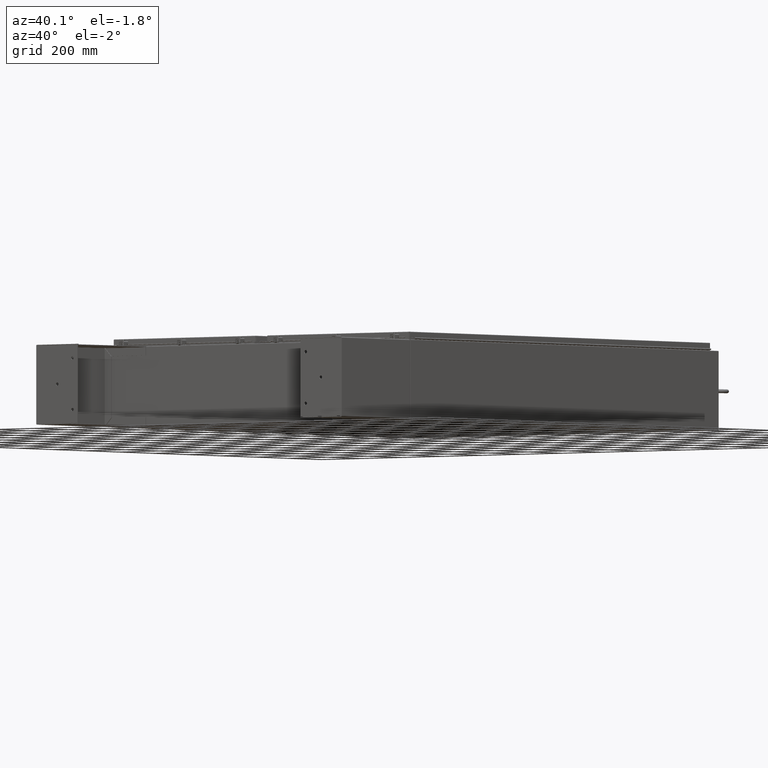
[diagram: clean part render]
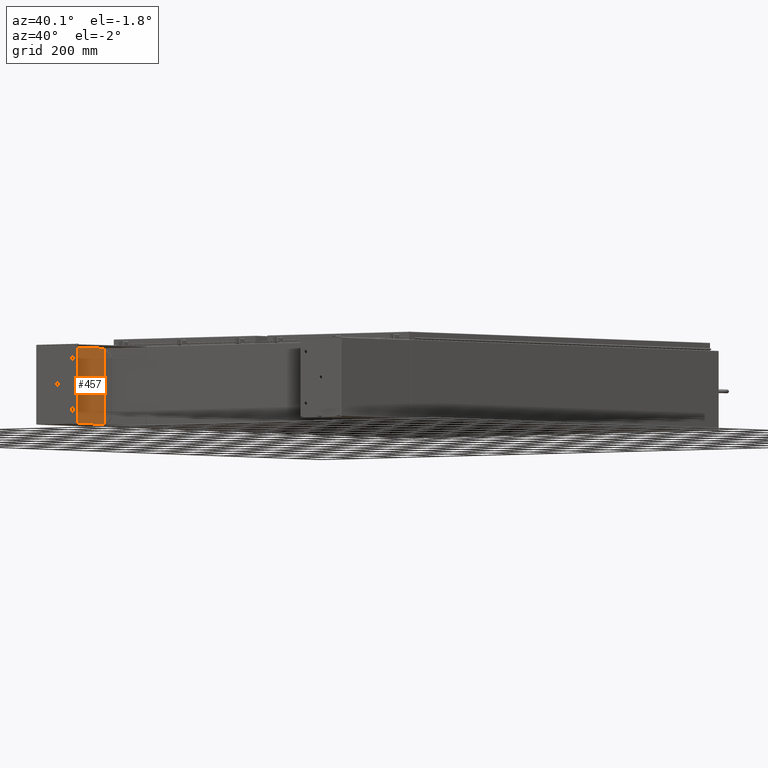
[diagram: same view with one face highlighted and labeled with its STEP entity id]
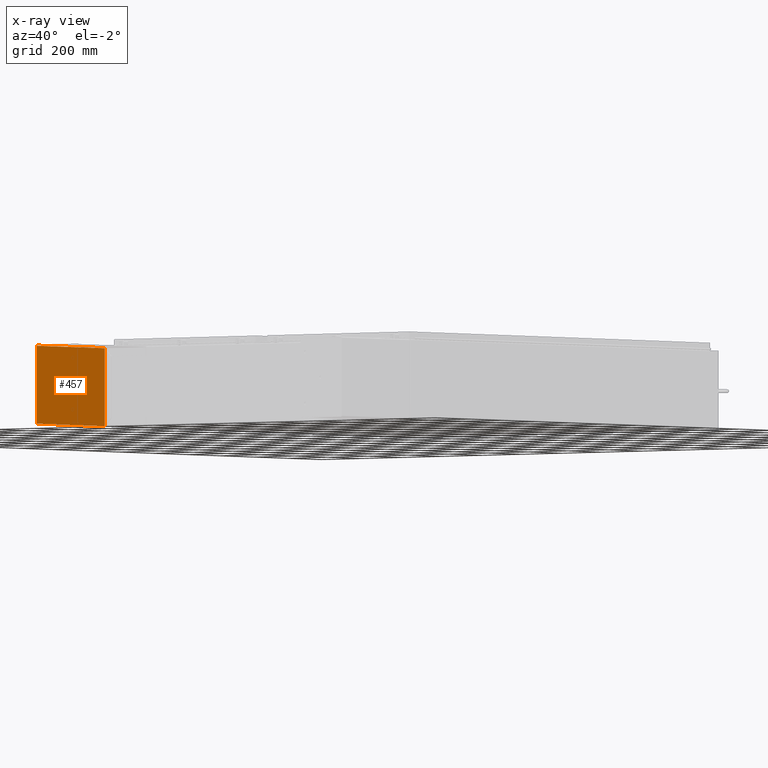
[diagram: x-ray of the same camera — body ghosted, the highlighted face saturated]
A machine part, auxiliary view. The second image highlights one B-rep face of the part: STEP entity #457.
The next image is the same camera in x-ray: the body ghosted, the highlighted face saturated — about 1% of this face is hidden behind the body in this view.
In plain terms, the highlighted planar face has unit normal (-1, 0, -0).
Its self-contained STEP definition (entity closure, byte-faithful):
#457 = ADVANCED_FACE ( 'NONE', ( #75121 ), #16752, .F. ) ;
#5501 = VERTEX_POINT ( 'NONE', #30797 ) ;
#5655 = EDGE_CURVE ( 'NONE', #5501, #14120, #72978, .T. ) ;
#5783 = VECTOR ( 'NONE', #11937, 39.37007874015748100 ) ;
#7191 = CARTESIAN_POINT ( 'NONE',  ( -5.856999999999998400, -7.999999999999932500, 0.0000000000000000000 ) ) ;
#7687 = LINE ( 'NONE', #7191, #5783 ) ;
#8050 = LINE ( 'NONE', #74559, #53851 ) ;
#9086 = ORIENTED_EDGE ( 'NONE', *, *, #16236, .F. ) ;
#11937 = DIRECTION ( 'NONE',  ( 0.0000000000000000000, 1.000000000000000000, -9.655357258041868400E-032 ) ) ;
#14120 = VERTEX_POINT ( 'NONE', #77015 ) ;
#16236 = EDGE_CURVE ( 'NONE', #5501, #28042, #7687, .T. ) ;
#16485 = DIRECTION ( 'NONE',  ( -1.000000000000000000, 0.0000000000000000000, 9.466330862652141700E-029 ) ) ;
#16583 = DIRECTION ( 'NONE',  ( -9.466330862652141700E-029, 9.655357258071575900E-032, -1.000000000000000000 ) ) ;
#16752 = PLANE ( 'NONE',  #64174 ) ;
#17512 = CARTESIAN_POINT ( 'NONE',  ( 5.999999999999997300, 8.000000000000032000, 0.0000000000000000000 ) ) ;
#22277 = CARTESIAN_POINT ( 'NONE',  ( -5.857000000000000200, 7.856999999999998400, 0.0000000000000000000 ) ) ;
#23964 = VECTOR ( 'NONE', #75799, 39.37007874015748100 ) ;
#24127 = ORIENTED_EDGE ( 'NONE', *, *, #5655, .T. ) ;
#27613 = EDGE_LOOP ( 'NONE', ( #45517, #9086, #24127, #47468 ) ) ;
#28042 = VERTEX_POINT ( 'NONE', #22277 ) ;
#30797 = CARTESIAN_POINT ( 'NONE',  ( -5.856999999999998400, -7.999999999999932500, 0.0000000000000000000 ) ) ;
#43935 = VERTEX_POINT ( 'NONE', #65397 ) ;
#44249 = EDGE_CURVE ( 'NONE', #28042, #43935, #8050, .T. ) ;
#45517 = ORIENTED_EDGE ( 'NONE', *, *, #44249, .F. ) ;
#47468 = ORIENTED_EDGE ( 'NONE', *, *, #55202, .F. ) ;
#53851 = VECTOR ( 'NONE', #68681, 39.37007874015748100 ) ;
#55202 = EDGE_CURVE ( 'NONE', #43935, #14120, #57541, .T. ) ;
#57541 = LINE ( 'NONE', #58281, #23964 ) ;
#58281 = CARTESIAN_POINT ( 'NONE',  ( 5.857000000000000200, 8.000000000000032000, 0.0000000000000000000 ) ) ;
#64174 = AXIS2_PLACEMENT_3D ( 'NONE', #17512, #16583, #16485 ) ;
#65397 = CARTESIAN_POINT ( 'NONE',  ( 5.857000000000000200, 7.857000000000034000, 0.0000000000000000000 ) ) ;
#68681 = DIRECTION ( 'NONE',  ( 1.000000000000000000, 0.0000000000000000000, -9.466330862652141700E-029 ) ) ;
#70285 = CARTESIAN_POINT ( 'NONE',  ( -5.999999999999997300, -7.999999999999871200, 0.0000000000000000000 ) ) ;
#70368 = DIRECTION ( 'NONE',  ( 1.000000000000000000, 0.0000000000000000000, -9.466330862652142800E-029 ) ) ;
#71141 = VECTOR ( 'NONE', #70368, 39.37007874015748100 ) ;
#72978 = LINE ( 'NONE', #70285, #71141 ) ;
#74559 = CARTESIAN_POINT ( 'NONE',  ( -5.857000000000000200, 7.856999999999998400, 0.0000000000000000000 ) ) ;
#75121 = FACE_OUTER_BOUND ( 'NONE', #27613, .T. ) ;
#75799 = DIRECTION ( 'NONE',  ( 0.0000000000000000000, -1.000000000000000000, 9.655357258041868400E-032 ) ) ;
#77015 = CARTESIAN_POINT ( 'NONE',  ( 5.856999999999998400, -7.999999999999923600, 0.0000000000000000000 ) ) ;